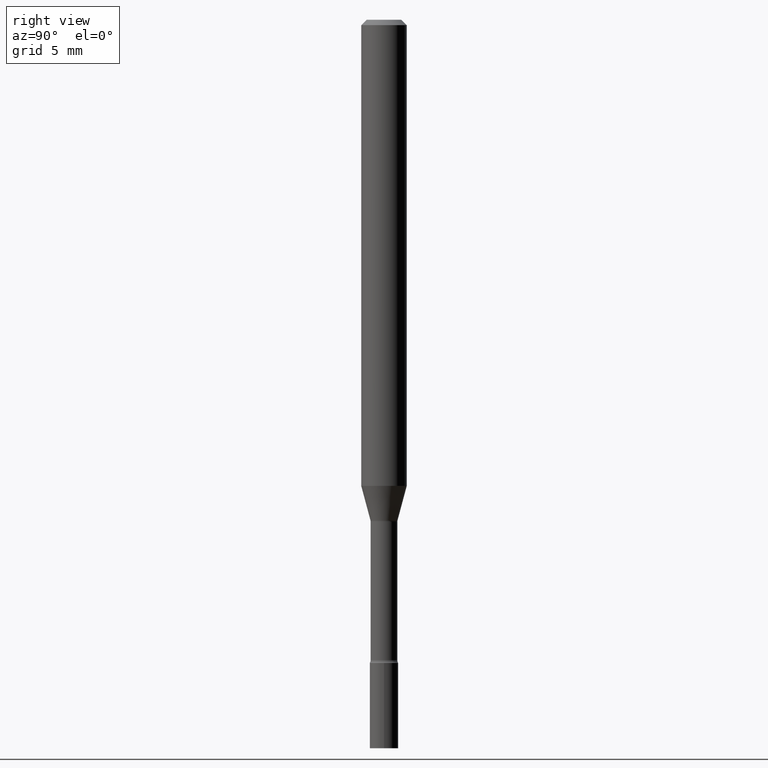
[diagram: clean part render]
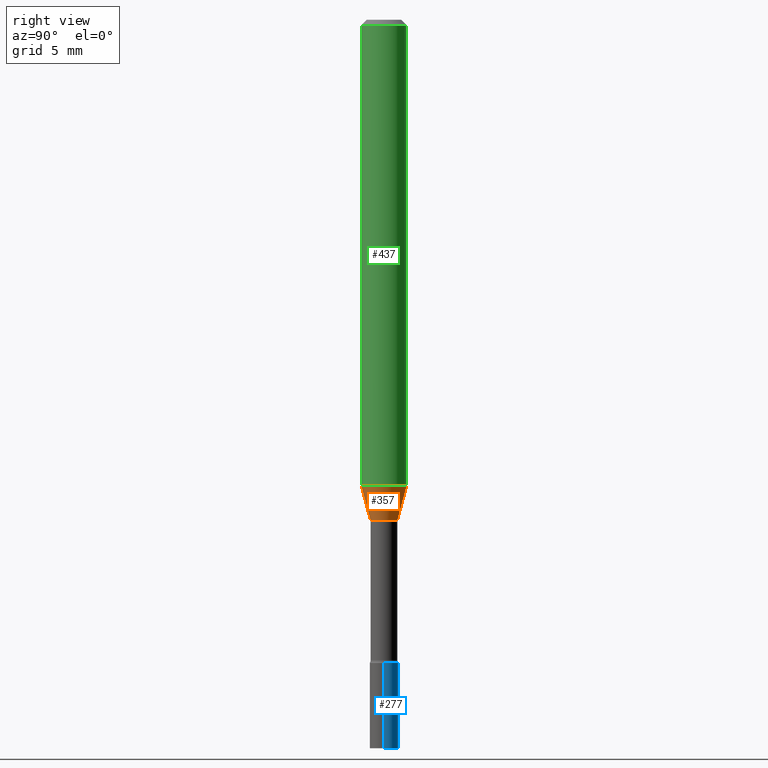
[diagram: same view with three faces highlighted in distinct colors, each labeled with its STEP entity id]
A machine part, right view with three faces highlighted in distinct colors.
Their STEP definitions:

[orange] entity #357 — the highlighted conical surface has half-angle 15 deg.
#11 = VECTOR ( 'NONE', #376, 39.37007874015748143 ) ;
#25 = VERTEX_POINT ( 'NONE', #186 ) ;
#30 = CONICAL_SURFACE ( 'NONE', #453, 0.03716111260566398039, 0.2617993877991502405 ) ;
#72 = ORIENTED_EDGE ( 'NONE', *, *, #445, .T. ) ;
#81 = FACE_OUTER_BOUND ( 'NONE', #364, .T. ) ;
#91 = CARTESIAN_POINT ( 'NONE',  ( -2.594946623866146070E-16, -0.03716111260566878211, -1.374092501787273157 ) ) ;
#94 = LINE ( 'NONE', #510, #11 ) ;
#102 = AXIS2_PLACEMENT_3D ( 'NONE', #516, #479, #311 ) ;
#149 = ORIENTED_EDGE ( 'NONE', *, *, #411, .F. ) ;
#151 = VERTEX_POINT ( 'NONE', #404 ) ;
#174 = CARTESIAN_POINT ( 'NONE',  ( 3.360277459732895560E-29, -4.797651107904894266E-15, -1.374092501787273157 ) ) ;
#183 = ORIENTED_EDGE ( 'NONE', *, *, #330, .F. ) ;
#186 = CARTESIAN_POINT ( 'NONE',  ( 4.440892098500935790E-16, 0.06249999999999550360, -1.279526486624345205 ) ) ;
#249 = DIRECTION ( 'NONE',  ( -2.445452147771860256E-29, 3.491505194639095236E-15, 1.000000000000000000 ) ) ;
#255 = ORIENTED_EDGE ( 'NONE', *, *, #369, .T. ) ;
#269 = VERTEX_POINT ( 'NONE', #334 ) ;
#283 = CIRCLE ( 'NONE', #102, 0.06250000000000000000 ) ;
#296 = LINE ( 'NONE', #91, #494 ) ;
#301 = DIRECTION ( 'NONE',  ( -6.982962677686265133E-15, -1.000000000000000000, 0.000000000000000000 ) ) ;
#311 = DIRECTION ( 'NONE',  ( -6.982962677686265922E-15, -1.000000000000000000, 4.370956789862821150E-15 ) ) ;
#313 = DIRECTION ( 'NONE',  ( -1.807323732225329745E-15, -0.2588190451025181305, 0.9659258262890689783 ) ) ;
#330 = EDGE_CURVE ( 'NONE', #269, #352, #296, .T. ) ;
#332 = DIRECTION ( 'NONE',  ( -6.982962677686265133E-15, -1.000000000000000000, 0.000000000000000000 ) ) ;
#334 = CARTESIAN_POINT ( 'NONE',  ( -2.594946623866146070E-16, -0.03716111260566878211, -1.374092501787273157 ) ) ;
#352 = VERTEX_POINT ( 'NONE', #483 ) ;
#357 = ADVANCED_FACE ( 'NONE', ( #81 ), #30, .T. ) ;
#364 = EDGE_LOOP ( 'NONE', ( #255, #72, #149, #183 ) ) ;
#369 = EDGE_CURVE ( 'NONE', #269, #151, #398, .T. ) ;
#376 = DIRECTION ( 'NONE',  ( 1.839019923739599921E-15, 0.2588190451025249028, 0.9659258262890670910 ) ) ;
#398 = CIRCLE ( 'NONE', #441, 0.03716111260566398039 ) ;
#404 = CARTESIAN_POINT ( 'NONE',  ( 3.540673979986519232E-16, 0.03716111260565918561, -1.374092501787273157 ) ) ;
#411 = EDGE_CURVE ( 'NONE', #352, #25, #283, .T. ) ;
#441 = AXIS2_PLACEMENT_3D ( 'NONE', #460, #508, #301 ) ;
#445 = EDGE_CURVE ( 'NONE', #151, #25, #94, .T. ) ;
#453 = AXIS2_PLACEMENT_3D ( 'NONE', #174, #249, #332 ) ;
#460 = CARTESIAN_POINT ( 'NONE',  ( 3.360277459732895560E-29, -4.797651107904894266E-15, -1.374092501787273157 ) ) ;
#479 = DIRECTION ( 'NONE',  ( -2.445452147771860256E-29, 3.491505194639095236E-15, 1.000000000000000000 ) ) ;
#483 = CARTESIAN_POINT ( 'NONE',  ( -4.364351673553605587E-16, -0.06250000000000449640, -1.279526486624344539 ) ) ;
#494 = VECTOR ( 'NONE', #313, 39.37007874015748143 ) ;
#508 = DIRECTION ( 'NONE',  ( -2.445452147771860256E-29, 3.491505194639095236E-15, 1.000000000000000000 ) ) ;
#510 = CARTESIAN_POINT ( 'NONE',  ( 2.640455861472098731E-16, 0.03716111260565918561, -1.374092501787273157 ) ) ;
#516 = CARTESIAN_POINT ( 'NONE',  ( 3.129020794846486150E-29, -4.467473374727209710E-15, -1.279526486624344761 ) ) ;

[blue] entity #277 — the highlighted cylindrical surface (edge-blend (fillet) strip) has radius 0.9906 mm, axis along (-0, 0, 1).
#2 = LINE ( 'NONE', #405, #481 ) ;
#3 = CIRCLE ( 'NONE', #144, 0.03899999999999999994 ) ;
#26 = ORIENTED_EDGE ( 'NONE', *, *, #191, .F. ) ;
#44 = EDGE_CURVE ( 'NONE', #131, #230, #220, .T. ) ;
#56 = ORIENTED_EDGE ( 'NONE', *, *, #44, .T. ) ;
#64 = AXIS2_PLACEMENT_3D ( 'NONE', #495, #424, #136 ) ;
#70 = CARTESIAN_POINT ( 'NONE',  ( 0.03899999999999999994, -7.255298222116054399E-15, -2.000000000000000000 ) ) ;
#116 = ORIENTED_EDGE ( 'NONE', *, *, #217, .T. ) ;
#117 = DIRECTION ( 'NONE',  ( -2.445468806185136597E-29, 3.491481338843145583E-15, 1.000000000000000000 ) ) ;
#120 = CARTESIAN_POINT ( 'NONE',  ( 4.890937612370273194E-29, -6.982962677686291165E-15, -2.000000000000000000 ) ) ;
#131 = VERTEX_POINT ( 'NONE', #300 ) ;
#136 = DIRECTION ( 'NONE',  ( 1.000000000000000000, -6.982962677686265922E-15, 4.876176775795935793E-29 ) ) ;
#144 = AXIS2_PLACEMENT_3D ( 'NONE', #196, #117, #360 ) ;
#181 = CARTESIAN_POINT ( 'NONE',  ( -0.03899999999999999994, -6.297347694095203445E-15, -1.766000000000000014 ) ) ;
#187 = EDGE_CURVE ( 'NONE', #286, #230, #3, .T. ) ;
#191 = EDGE_CURVE ( 'NONE', #402, #286, #2, .T. ) ;
#196 = CARTESIAN_POINT ( 'NONE',  ( 4.318697911722950844E-29, -6.165956044396995152E-15, -1.766000000000000014 ) ) ;
#198 = DIRECTION ( 'NONE',  ( -2.445468806185136597E-29, 3.491481338843145583E-15, 1.000000000000000000 ) ) ;
#217 = EDGE_CURVE ( 'NONE', #402, #131, #512, .T. ) ;
#220 = LINE ( 'NONE', #433, #492 ) ;
#230 = VERTEX_POINT ( 'NONE', #181 ) ;
#240 = AXIS2_PLACEMENT_3D ( 'NONE', #120, #198, #295 ) ;
#277 = ADVANCED_FACE ( 'NONE', ( #497 ), #288, .T. ) ;
#284 = CARTESIAN_POINT ( 'NONE',  ( 0.03899999999999999994, -6.438291588826759175E-15, -1.766000000000000014 ) ) ;
#286 = VERTEX_POINT ( 'NONE', #284 ) ;
#288 = CYLINDRICAL_SURFACE ( 'NONE', #64, 0.03899999999999999994 ) ;
#291 = DIRECTION ( 'NONE',  ( -2.445468806185136877E-29, 3.491481338843145188E-15, 1.000000000000000000 ) ) ;
#295 = DIRECTION ( 'NONE',  ( 1.000000000000000000, -6.982962677686258033E-15, 0.000000000000000000 ) ) ;
#300 = CARTESIAN_POINT ( 'NONE',  ( -0.03899999999999999994, -6.297347694095203445E-15, -2.000000000000000000 ) ) ;
#316 = DIRECTION ( 'NONE',  ( -2.445468806185136877E-29, 3.491481338843145188E-15, 1.000000000000000000 ) ) ;
#360 = DIRECTION ( 'NONE',  ( 1.000000000000000000, -6.982962677686258033E-15, 0.000000000000000000 ) ) ;
#402 = VERTEX_POINT ( 'NONE', #70 ) ;
#405 = CARTESIAN_POINT ( 'NONE',  ( 0.03899999999999999994, -2.723355444297643682E-16, 1.901708942560414931E-30 ) ) ;
#424 = DIRECTION ( 'NONE',  ( -2.445468806185136597E-29, 3.491481338843145583E-15, 1.000000000000000000 ) ) ;
#433 = CARTESIAN_POINT ( 'NONE',  ( -0.03899999999999999994, 2.771116669464390721E-16, -1.918384685199413078E-30 ) ) ;
#476 = ORIENTED_EDGE ( 'NONE', *, *, #187, .F. ) ;
#481 = VECTOR ( 'NONE', #316, 39.37007874015748143 ) ;
#492 = VECTOR ( 'NONE', #291, 39.37007874015748143 ) ;
#495 = CARTESIAN_POINT ( 'NONE',  ( 0.000000000000000000, 0.000000000000000000, 0.000000000000000000 ) ) ;
#496 = EDGE_LOOP ( 'NONE', ( #116, #56, #476, #26 ) ) ;
#497 = FACE_OUTER_BOUND ( 'NONE', #496, .T. ) ;
#512 = CIRCLE ( 'NONE', #240, 0.03899999999999999994 ) ;

[green] entity #437 — the highlighted cylindrical surface (edge-blend (fillet) strip) has radius 1.5875 mm, axis along (-0, 0, 1).
#6 = CARTESIAN_POINT ( 'NONE',  ( 4.440892098500940720E-16, 0.06249999999999995143, -0.01500000000000024751 ) ) ;
#10 = VECTOR ( 'NONE', #377, 39.37007874015748143 ) ;
#15 = VERTEX_POINT ( 'NONE', #518 ) ;
#25 = VERTEX_POINT ( 'NONE', #186 ) ;
#61 = CARTESIAN_POINT ( 'NONE',  ( -4.364351673553916201E-16, -0.06250000000000000000, 2.182190746649434522E-16 ) ) ;
#71 = CARTESIAN_POINT ( 'NONE',  ( 3.668178221657797460E-31, -5.237257791958653577E-17, -0.01500000000000003067 ) ) ;
#82 = LINE ( 'NONE', #444, #176 ) ;
#102 = AXIS2_PLACEMENT_3D ( 'NONE', #516, #479, #311 ) ;
#107 = EDGE_CURVE ( 'NONE', #15, #197, #165, .T. ) ;
#113 = FACE_OUTER_BOUND ( 'NONE', #472, .T. ) ;
#153 = DIRECTION ( 'NONE',  ( -2.445452147771860256E-29, 3.491505194639094841E-15, 1.000000000000000000 ) ) ;
#156 = AXIS2_PLACEMENT_3D ( 'NONE', #71, #470, #391 ) ;
#165 = CIRCLE ( 'NONE', #156, 0.06250000000000000000 ) ;
#168 = AXIS2_PLACEMENT_3D ( 'NONE', #442, #323, #238 ) ;
#172 = EDGE_CURVE ( 'NONE', #25, #197, #82, .T. ) ;
#176 = VECTOR ( 'NONE', #153, 39.37007874015748143 ) ;
#186 = CARTESIAN_POINT ( 'NONE',  ( 4.440892098500935790E-16, 0.06249999999999550360, -1.279526486624345205 ) ) ;
#190 = ORIENTED_EDGE ( 'NONE', *, *, #172, .T. ) ;
#197 = VERTEX_POINT ( 'NONE', #6 ) ;
#210 = LINE ( 'NONE', #61, #10 ) ;
#236 = EDGE_CURVE ( 'NONE', #352, #15, #210, .T. ) ;
#238 = DIRECTION ( 'NONE',  ( -6.982962677686265922E-15, -1.000000000000000000, 3.491505194639095236E-15 ) ) ;
#271 = CYLINDRICAL_SURFACE ( 'NONE', #168, 0.06250000000000000000 ) ;
#282 = ORIENTED_EDGE ( 'NONE', *, *, #411, .T. ) ;
#283 = CIRCLE ( 'NONE', #102, 0.06250000000000000000 ) ;
#311 = DIRECTION ( 'NONE',  ( -6.982962677686265922E-15, -1.000000000000000000, 4.370956789862821150E-15 ) ) ;
#320 = ORIENTED_EDGE ( 'NONE', *, *, #107, .F. ) ;
#323 = DIRECTION ( 'NONE',  ( -2.445452147771860256E-29, 3.491505194639095236E-15, 1.000000000000000000 ) ) ;
#352 = VERTEX_POINT ( 'NONE', #483 ) ;
#366 = ORIENTED_EDGE ( 'NONE', *, *, #236, .F. ) ;
#377 = DIRECTION ( 'NONE',  ( -2.445452147771860256E-29, 3.491505194639094841E-15, 1.000000000000000000 ) ) ;
#391 = DIRECTION ( 'NONE',  ( -6.982962677686265922E-15, -1.000000000000000000, 3.483106191921935554E-15 ) ) ;
#411 = EDGE_CURVE ( 'NONE', #352, #25, #283, .T. ) ;
#437 = ADVANCED_FACE ( 'NONE', ( #113 ), #271, .T. ) ;
#442 = CARTESIAN_POINT ( 'NONE',  ( 0.000000000000000000, 0.000000000000000000, 0.000000000000000000 ) ) ;
#444 = CARTESIAN_POINT ( 'NONE',  ( 4.440892098500625669E-16, 0.06250000000000000000, -2.182190746649434522E-16 ) ) ;
#470 = DIRECTION ( 'NONE',  ( -2.445452147771860256E-29, 3.491505194639095236E-15, 1.000000000000000000 ) ) ;
#472 = EDGE_LOOP ( 'NONE', ( #282, #190, #320, #366 ) ) ;
#479 = DIRECTION ( 'NONE',  ( -2.445452147771860256E-29, 3.491505194639095236E-15, 1.000000000000000000 ) ) ;
#483 = CARTESIAN_POINT ( 'NONE',  ( -4.364351673553605587E-16, -0.06250000000000449640, -1.279526486624344539 ) ) ;
#516 = CARTESIAN_POINT ( 'NONE',  ( 3.129020794846486150E-29, -4.467473374727209710E-15, -1.279526486624344761 ) ) ;
#518 = CARTESIAN_POINT ( 'NONE',  ( -4.364351673553912750E-16, -0.06250000000000005551, -0.01499999999999981209 ) ) ;